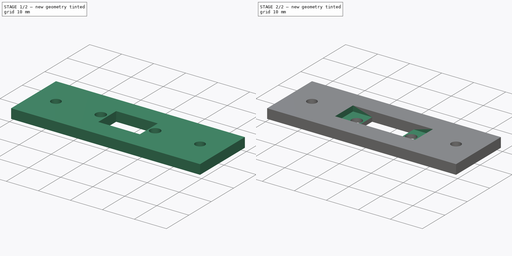
[diagram: build sequence overview — one tinted view per stage of 2, left to right]
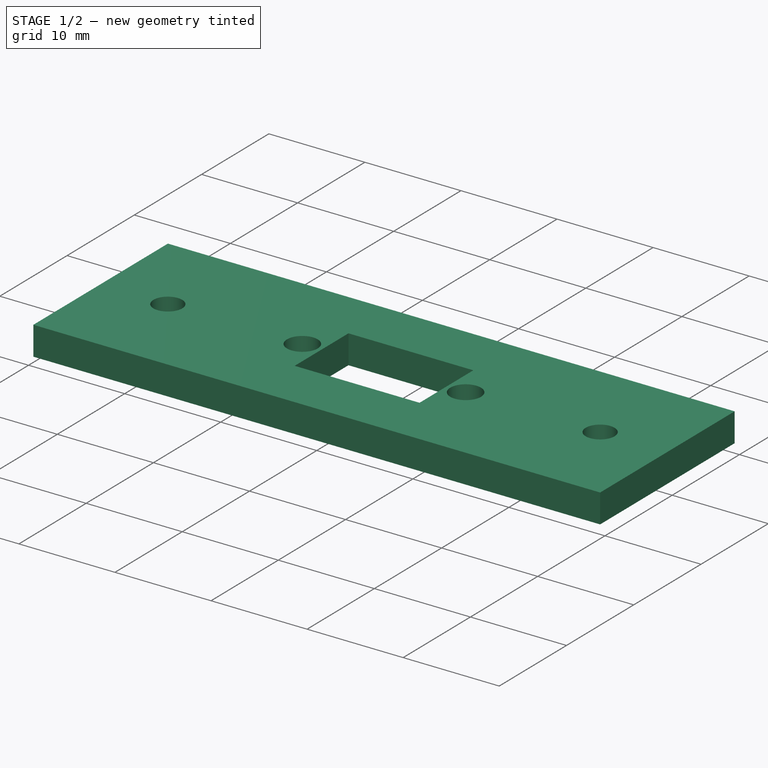
[diagram: stage 1 of 2 — iso view after this stage's code; geometry added in this stage tinted green]
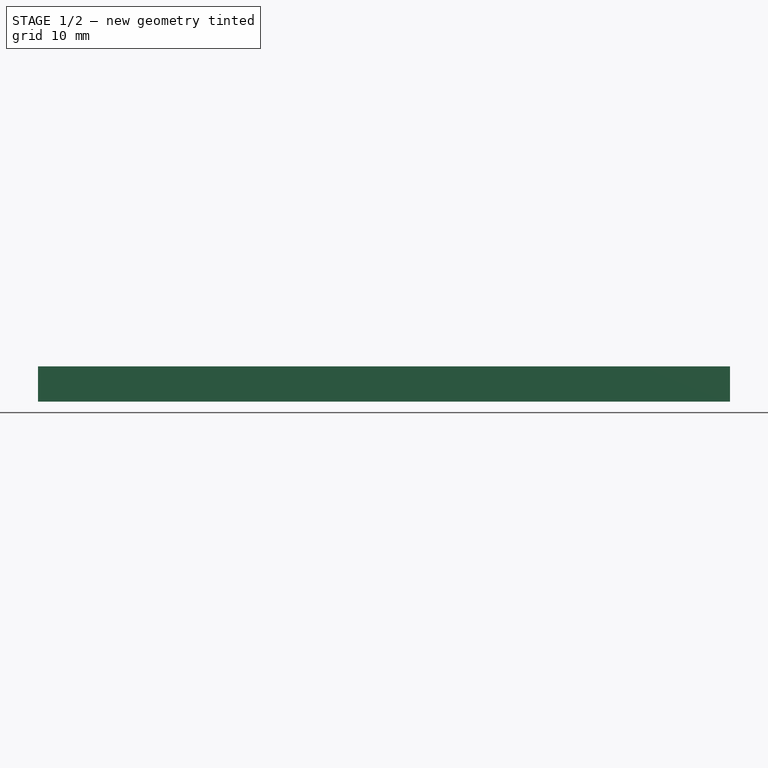
[diagram: stage 1 of 2 — front view after this stage's code; geometry added in this stage tinted green]
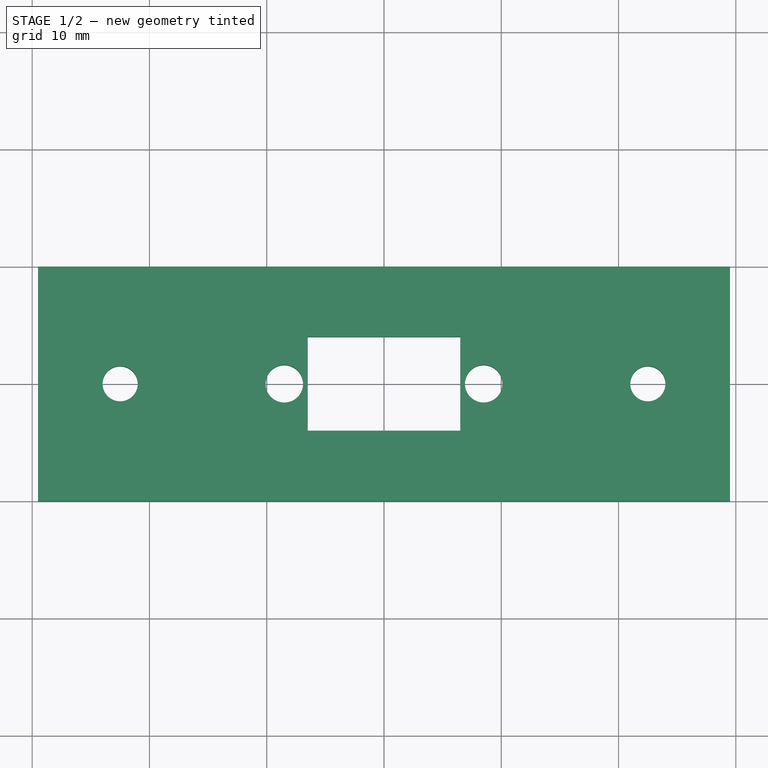
[diagram: stage 1 of 2 — top view after this stage's code; geometry added in this stage tinted green]
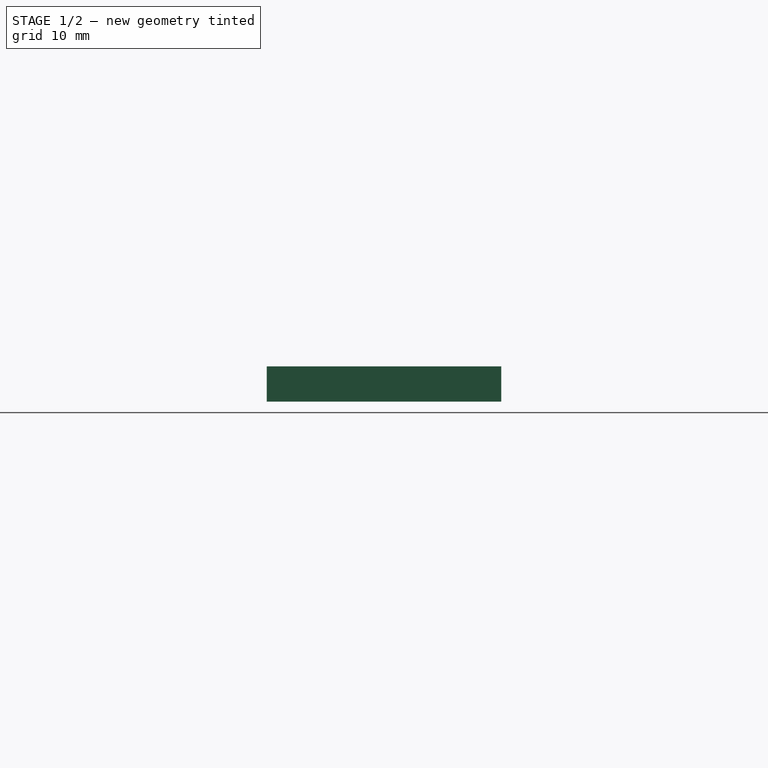
[diagram: stage 1 of 2 — right view after this stage's code; geometry added in this stage tinted green]
FCSTD DOCUMENT  (FreeCAD 1.0R39109 (Git))
Label: USBC-Bulkhead
License: All rights reserved
LicenseURL: https://en.wikipedia.org/wiki/All_rights_reserved
objects: Sketcher::SketchObject×3, Spreadsheet::Sheet×1, PartDesign::Pad×1, PartDesign::Pocket×1, PartDesign::Body×1
note: 13 computed .brp shape members not serialized (recipe doc carries the construction recipe); baked Part::Feature solids carry a one-line shape summary decoded from their .brp

FEATURE [Spreadsheet::Sheet] Spreadsheet
  cells = A1='plate_width; B1(plate_width)=59; C1='width of the bulkhead plate; A2='plate_height; B2(plate_height)=20; C2='height of the bulkhead plate; A3='plate_depth; B3(plate_depth)=3; C3='depth of the bulkhead plate; A4='plate_hole_dia; B4(plate_hole_dia)=3; C4='diameter of plate holes; A5='plate_hole_sep; B5(plate_hole_sep)=45; C5='separation of plate holes; A6='con_hole_dia; B6(con_hole_dia)=3.2; C6='connector hole diameter; A7='con_hole_sep; B7(con_hole_sep)=17; C7='connector hole separation; A8='con_access_width; B8(con_access_width)=13; C8='connector access hole width; A9='con_access_height; B9(con_access_height)=8; C9='connector access hole height; A10='con_recess_width; B10(con_recess_width)=25; C10='width of recess for connector; A11='con_recess_height; B11(con_recess_height)==con_access_height; C11='height of recess for connector; A12='con_recess_depth; B12(con_recess_depth)=1.7; C12='depth of connector recess (needs to be less than plate depth!)
FEATURE [Sketcher::SketchObject] Sketch
  ArcFitTolerance = 1e-06
  AttachmentSupport = -> [XY_Plane]
  FullyConstrained = true
  MakeInternals = false
  MapMode = 5
  expr: Constraints[24] = Spreadsheet.plate_height
  expr: Constraints[25] = Spreadsheet.plate_width
  expr: Constraints[26] = Spreadsheet.con_access_width
  expr: Constraints[27] = Spreadsheet.con_access_height
  expr: Constraints[28] = Spreadsheet.plate_hole_dia
  expr: Constraints[29] = Spreadsheet.con_hole_dia
  expr: Constraints[30] = Spreadsheet.plate_hole_sep / 2
  expr: Constraints[31] = Spreadsheet.con_hole_sep / 2
  sketch-geometry (12):
    g0: LineSegment StartX=-29.5 StartY=10 StartZ=0 EndX=-29.5 EndY=-10 EndZ=0
    g1: LineSegment StartX=-29.5 StartY=-10 StartZ=0 EndX=29.5 EndY=-10 EndZ=0
    g2: LineSegment StartX=29.5 StartY=-10 StartZ=0 EndX=29.5 EndY=10 EndZ=0
    g3: LineSegment StartX=29.5 StartY=10 StartZ=0 EndX=-29.5 EndY=10 EndZ=0
    g4: LineSegment StartX=-6.5 StartY=4 StartZ=0 EndX=-6.5 EndY=-4 EndZ=0
    g5: LineSegment StartX=-6.5 StartY=-4 StartZ=0 EndX=6.5 EndY=-4 EndZ=0
    g6: LineSegment StartX=6.5 StartY=-4 StartZ=0 EndX=6.5 EndY=4 EndZ=0
    g7: LineSegment StartX=6.5 StartY=4 StartZ=0 EndX=-6.5 EndY=4 EndZ=0
    g8: Circle CenterX=-22.5 CenterY=0 CenterZ=0 NormalX=0 NormalY=0 NormalZ=1 AngleXU=0 Radius=1.5
    g9: Circle CenterX=-8.5 CenterY=0 CenterZ=0 NormalX=0 NormalY=0 NormalZ=1 AngleXU=0 Radius=1.6
    g10: Circle CenterX=8.5 CenterY=0 CenterZ=0 NormalX=0 NormalY=0 NormalZ=1 AngleXU=0 Radius=1.6
    g11: Circle CenterX=22.5 CenterY=0 CenterZ=0 NormalX=0 NormalY=0 NormalZ=1 AngleXU=0 Radius=1.5
  constraints (32):
    c: Coincident(g0,g1)
    c: Coincident(g1,g2)
    c: Coincident(g2,g3)
    c: Coincident(g3,g0)
    c: Vertical(g0)
    c: Vertical(g2)
    c: Horizontal(g1)
    c: Horizontal(g3)
    c: Coincident(g4,g5)
    c: Coincident(g5,g6)
    c: Coincident(g6,g7)
    c: Coincident(g7,g4)
    c: Vertical(g4)
    c: Vertical(g6)
    c: Horizontal(g5)
    c: Horizontal(g7)
    c: PointOnObject(g8,g-1)
    c: PointOnObject(g9,g-1)
    c: Symmetric(g0,g2,g-1)
    c: Symmetric(g4,g6,g-1)
    c: Symmetric(g8,g11,g-2)
    c: Symmetric(g9,g10,g-2)
    c: Equal(g8,g11)
    c: Equal(g9,g10)
    c: DistanceY(g0,g0) = 20
    c: DistanceX(g3,g3) = 59
    c: DistanceX(g7,g7) = 13
    c: DistanceY(g4,g4) = 8
    c: Diameter(g8) = 3
    c: Diameter(g10) = 3.2
    c: DistanceX(g8,g-1) = 22.5
    c: DistanceX(g-1,g10) = 8.5
FEATURE [PartDesign::Pad] Pad
  Direction = (0,0,1)
  Length = 3
  Length2 = 10
  Profile = -> Sketch
  ReferenceAxis = -> Sketch [N_Axis]
  Refine = true
  Suppressed = false
  Type = 0
  expr: Length = Spreadsheet.plate_depth
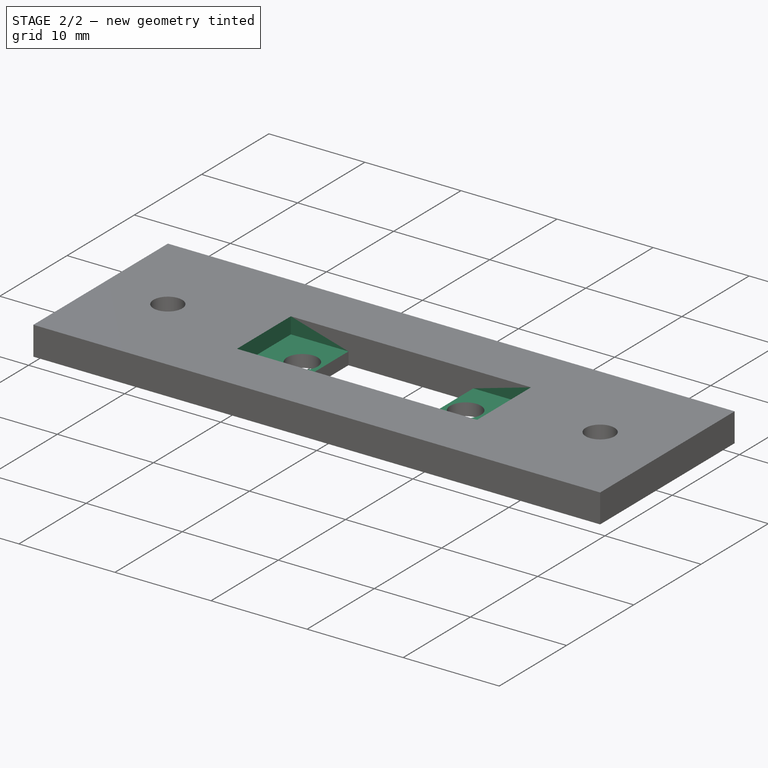
[diagram: stage 2 of 2 — iso view after this stage's code; geometry added in this stage tinted green]
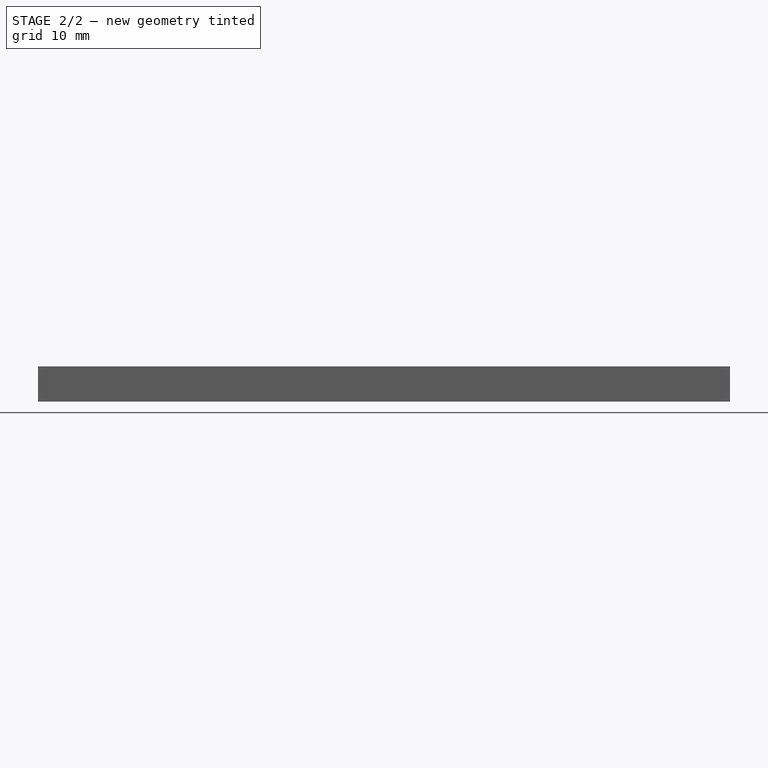
[diagram: stage 2 of 2 — front view after this stage's code; geometry added in this stage tinted green]
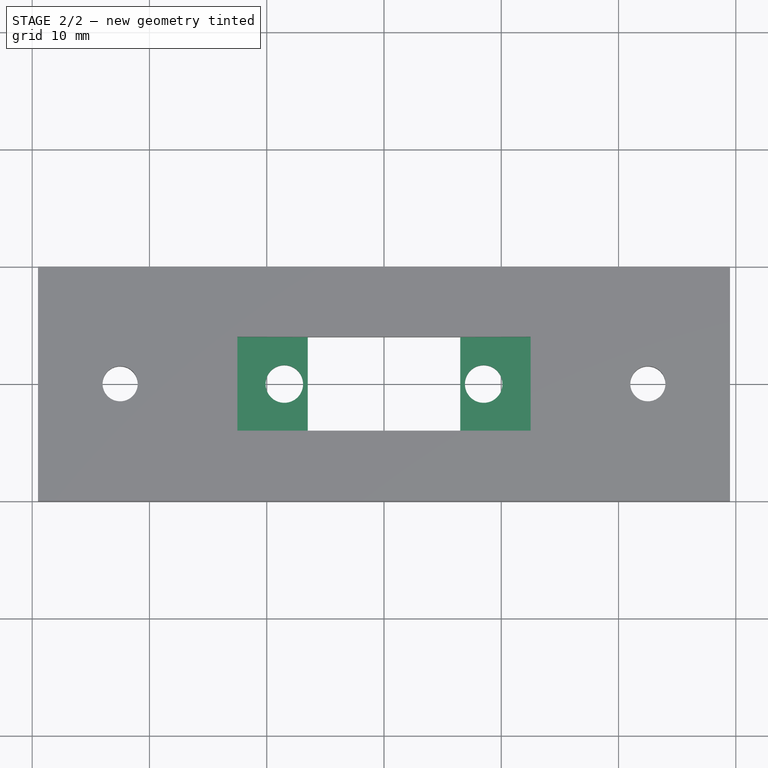
[diagram: stage 2 of 2 — top view after this stage's code; geometry added in this stage tinted green]
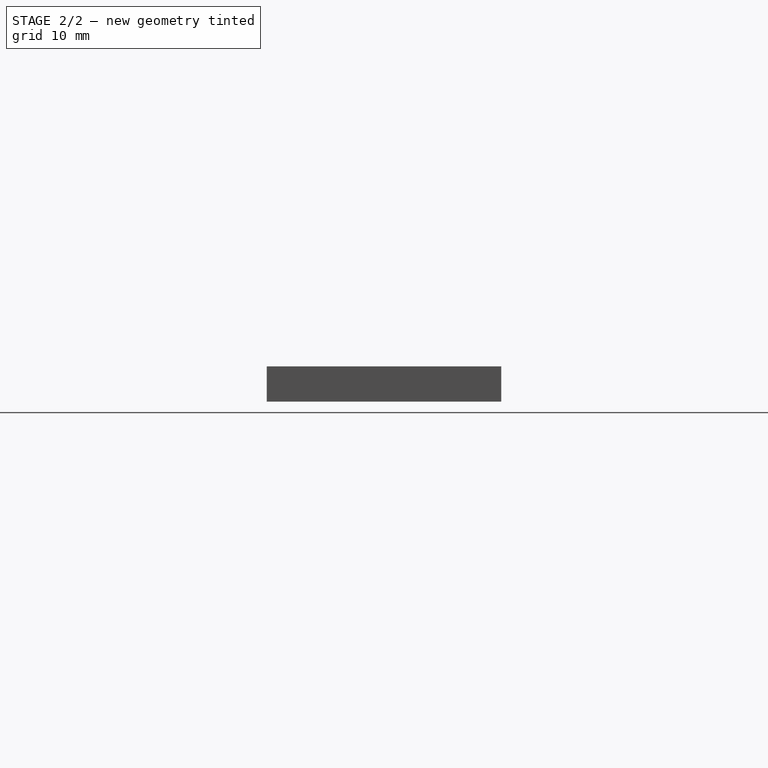
[diagram: stage 2 of 2 — right view after this stage's code; geometry added in this stage tinted green]
FEATURE [Sketcher::SketchObject] Sketch001
  ArcFitTolerance = 1e-06
  AttachmentSupport = -> [Pad]
  FullyConstrained = true
  MakeInternals = false
  MapMode = 5
  Placement = pos=(0,0,3) rot=(0,0,1;0rad)
  expr: Constraints[10] = Spreadsheet.con_recess_height
  expr: Constraints[9] = Spreadsheet.con_recess_width
  sketch-geometry (4):
    g0: LineSegment StartX=-12.5 StartY=-4 StartZ=0 EndX=12.5 EndY=-4 EndZ=0
    g1: LineSegment StartX=12.5 StartY=-4 StartZ=0 EndX=12.5 EndY=4 EndZ=0
    g2: LineSegment StartX=12.5 StartY=4 StartZ=0 EndX=-12.5 EndY=4 EndZ=0
    g3: LineSegment StartX=-12.5 StartY=4 StartZ=0 EndX=-12.5 EndY=-4 EndZ=0
  constraints (11):
    c: Coincident(g0,g1)
    c: Coincident(g1,g2)
    c: Coincident(g2,g3)
    c: Coincident(g3,g0)
    c: Horizontal(g0)
    c: Horizontal(g2)
    c: Vertical(g1)
    c: Vertical(g3)
    c: Symmetric(g0,g1,g-1)
    c: DistanceX(g0,g0) = 25
    c: DistanceY(g3,g3) = 8
FEATURE [Sketcher::SketchObject] Sketch002
  ArcFitTolerance = 1e-06
  AttachmentSupport = -> [Pad]
  FullyConstrained = true
  MakeInternals = false
  MapMode = 5
  Placement = pos=(0,0,3) rot=(0,0,1;0rad)
  expr: Constraints[10] = Spreadsheet.con_recess_width
  expr: Constraints[9] = Spreadsheet.con_recess_height
  sketch-geometry (4):
    g0: LineSegment StartX=-12.5 StartY=-4 StartZ=0 EndX=12.5 EndY=-4 EndZ=0
    g1: LineSegment StartX=12.5 StartY=-4 StartZ=0 EndX=12.5 EndY=4 EndZ=0
    g2: LineSegment StartX=12.5 StartY=4 StartZ=0 EndX=-12.5 EndY=4 EndZ=0
    g3: LineSegment StartX=-12.5 StartY=4 StartZ=0 EndX=-12.5 EndY=-4 EndZ=0
  constraints (11):
    c: Coincident(g0,g1)
    c: Coincident(g1,g2)
    c: Coincident(g2,g3)
    c: Coincident(g3,g0)
    c: Horizontal(g0)
    c: Horizontal(g2)
    c: Vertical(g1)
    c: Vertical(g3)
    c: Symmetric(g0,g1,g-1)
    c: DistanceY(g3,g3) = 8
    c: DistanceX(g0,g0) = 25
FEATURE [PartDesign::Pocket] Pocket
  BaseFeature = -> Pad
  Direction = (0,0,-1)
  Length = 1.7
  Length2 = 5
  Profile = -> Sketch002
  ReferenceAxis = -> Sketch002 [N_Axis]
  Refine = true
  Suppressed = false
  Type = 0
  expr: Length = Spreadsheet.con_recess_depth
FEATURE [PartDesign::Body] Body
  AllowCompound = false
  Group = -> [Sketch,Pad,Sketch001,Sketch002,Pocket]
  Origin = -> Origin
  Tip = -> Pocket
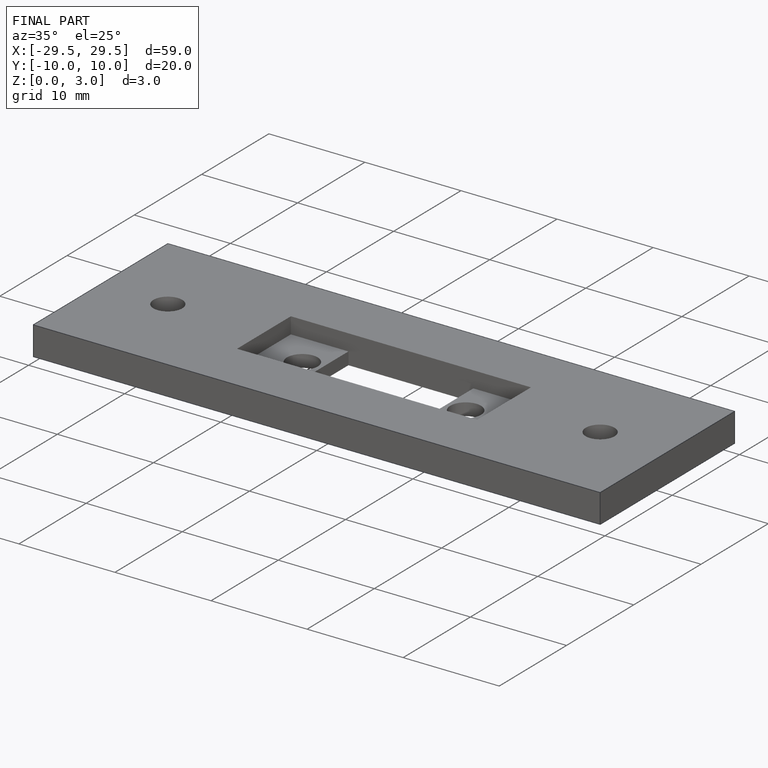
[diagram: finished part — iso view with bounding-box wireframe]
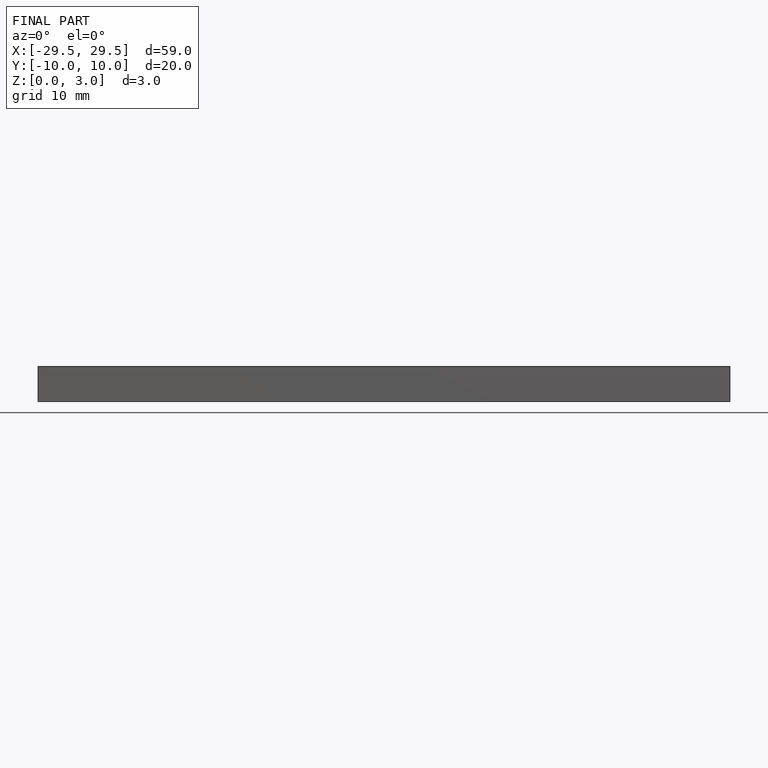
[diagram: finished part — front view with bounding-box wireframe]
